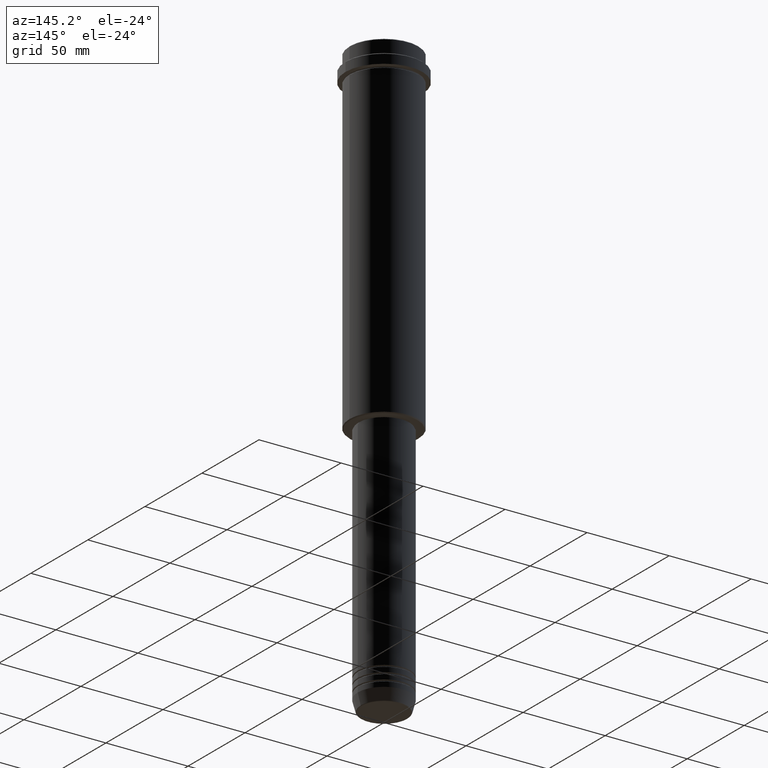
[diagram: clean part render]
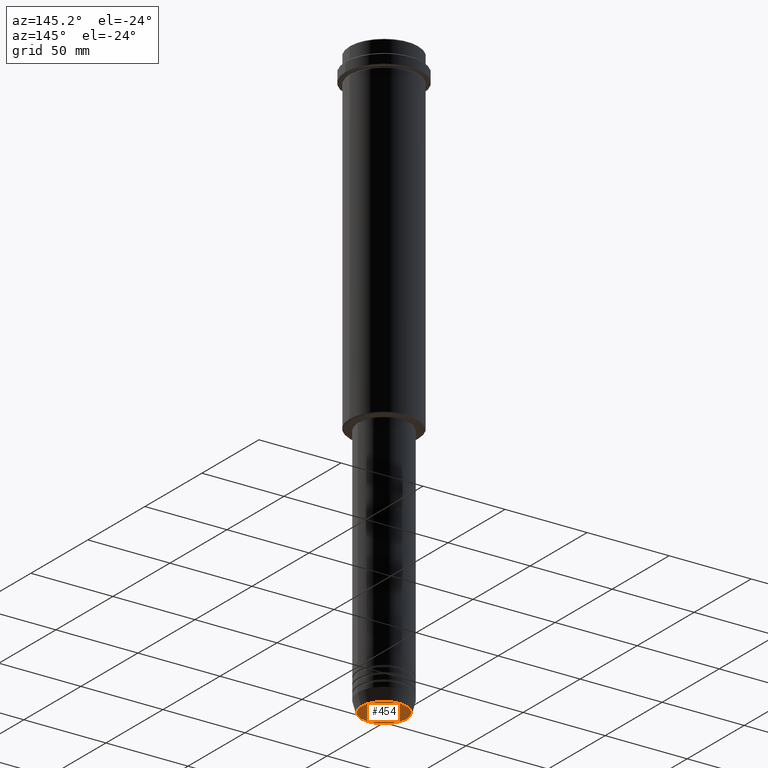
[diagram: same view with one face highlighted and labeled with its STEP entity id]
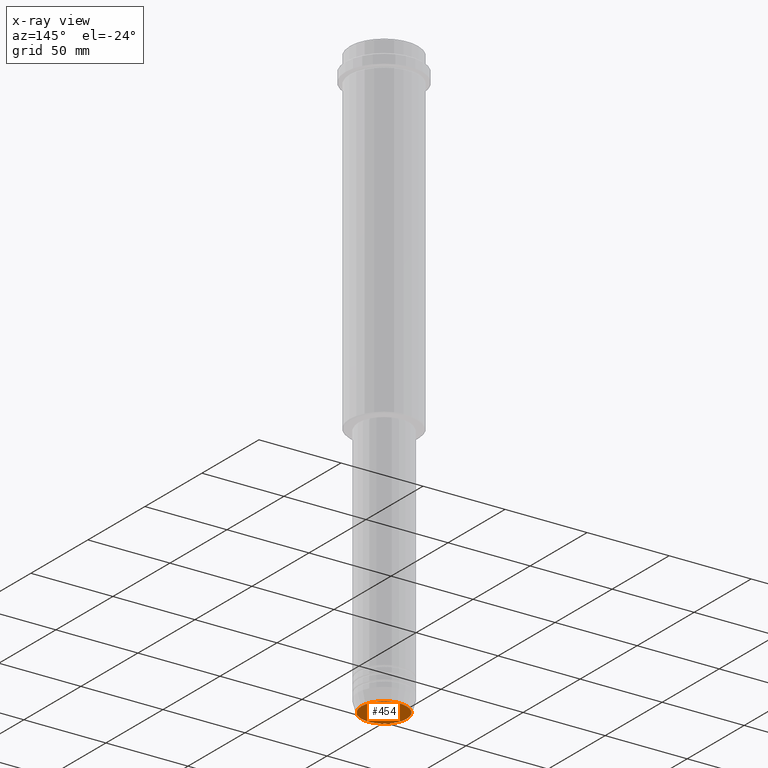
[diagram: x-ray of the same camera — body ghosted, the highlighted face saturated]
A machine part, auxiliary view. The second image highlights one B-rep face of the part: STEP entity #454.
The next image is the same camera in x-ray: the body ghosted, the highlighted face saturated — about 0% of this face is hidden behind the body in this view.
In plain terms, the highlighted planar face has unit normal (0, -0, 1).
Its self-contained STEP definition (entity closure, byte-faithful):
#39 = DIRECTION ( 'NONE',  ( 1.000000000000000000, 0.000000000000000000, 0.000000000000000000 ) ) ;
#82 = DIRECTION ( 'NONE',  ( 1.000000000000000000, 0.000000000000000000, 0.000000000000000000 ) ) ;
#180 = DIRECTION ( 'NONE',  ( 0.000000000000000000, 0.000000000000000000, -1.000000000000000000 ) ) ;
#350 = AXIS2_PLACEMENT_3D ( 'NONE', #1032, #941, #39 ) ;
#453 = AXIS2_PLACEMENT_3D ( 'NONE', #1145, #470, #714 ) ;
#454 = ADVANCED_FACE ( 'NONE', ( #480 ), #831, .F. ) ;
#470 = DIRECTION ( 'NONE',  ( 0.000000000000000000, -0.000000000000000000, 1.000000000000000000 ) ) ;
#480 = FACE_OUTER_BOUND ( 'NONE', #951, .T. ) ;
#510 = AXIS2_PLACEMENT_3D ( 'NONE', #1406, #180, #82 ) ;
#524 = EDGE_CURVE ( 'NONE', #850, #580, #927, .T. ) ;
#580 = VERTEX_POINT ( 'NONE', #1066 ) ;
#647 = CIRCLE ( 'NONE', #350, 13.74069215899265828 ) ;
#678 = ORIENTED_EDGE ( 'NONE', *, *, #524, .T. ) ;
#714 = DIRECTION ( 'NONE',  ( 1.000000000000000000, 0.000000000000000000, 0.000000000000000000 ) ) ;
#728 = ORIENTED_EDGE ( 'NONE', *, *, #1227, .T. ) ;
#831 = PLANE ( 'NONE',  #453 ) ;
#850 = VERTEX_POINT ( 'NONE', #1254 ) ;
#927 = CIRCLE ( 'NONE', #510, 13.74069215899265828 ) ;
#941 = DIRECTION ( 'NONE',  ( 0.000000000000000000, 0.000000000000000000, -1.000000000000000000 ) ) ;
#951 = EDGE_LOOP ( 'NONE', ( #678, #728 ) ) ;
#1032 = CARTESIAN_POINT ( 'NONE',  ( 0.000000000000000000, 0.000000000000000000, -360.0000000000000568 ) ) ;
#1066 = CARTESIAN_POINT ( 'NONE',  ( -13.74069215899265828, 1.712322416342415986E-15, -360.0000000000000568 ) ) ;
#1145 = CARTESIAN_POINT ( 'NONE',  ( 0.000000000000000000, 0.000000000000000000, -360.0000000000000568 ) ) ;
#1227 = EDGE_CURVE ( 'NONE', #580, #850, #647, .T. ) ;
#1254 = CARTESIAN_POINT ( 'NONE',  ( 13.74069215899265828, 0.000000000000000000, -360.0000000000000568 ) ) ;
#1406 = CARTESIAN_POINT ( 'NONE',  ( 0.000000000000000000, 0.000000000000000000, -360.0000000000000568 ) ) ;